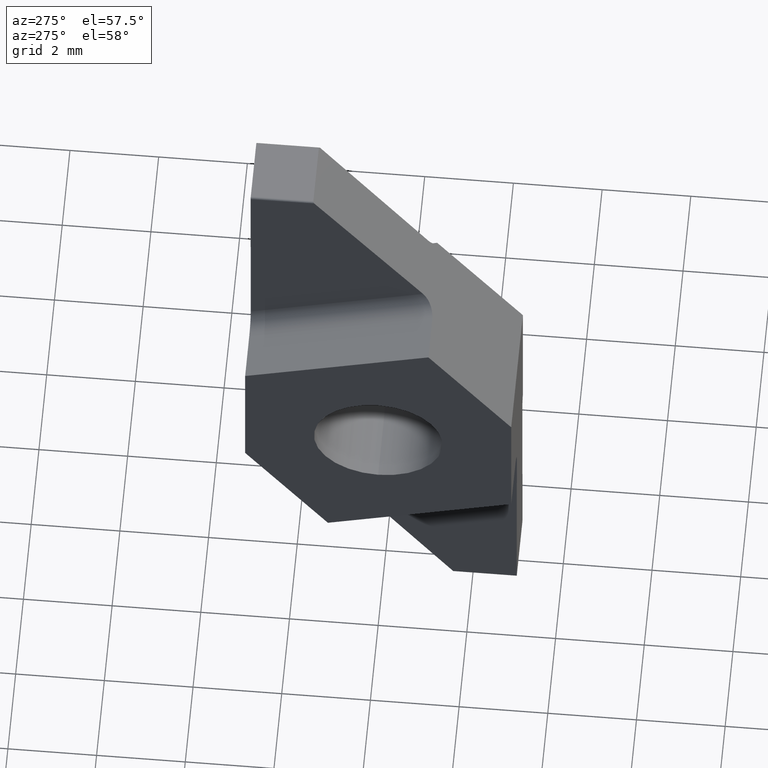
[diagram: clean part render]
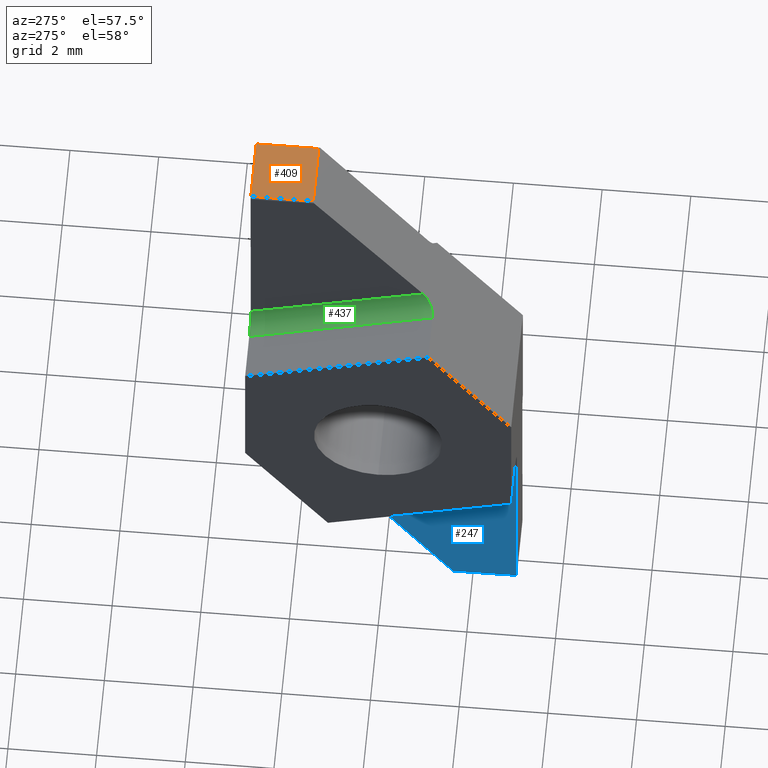
[diagram: same view with three faces highlighted in distinct colors, each labeled with its STEP entity id]
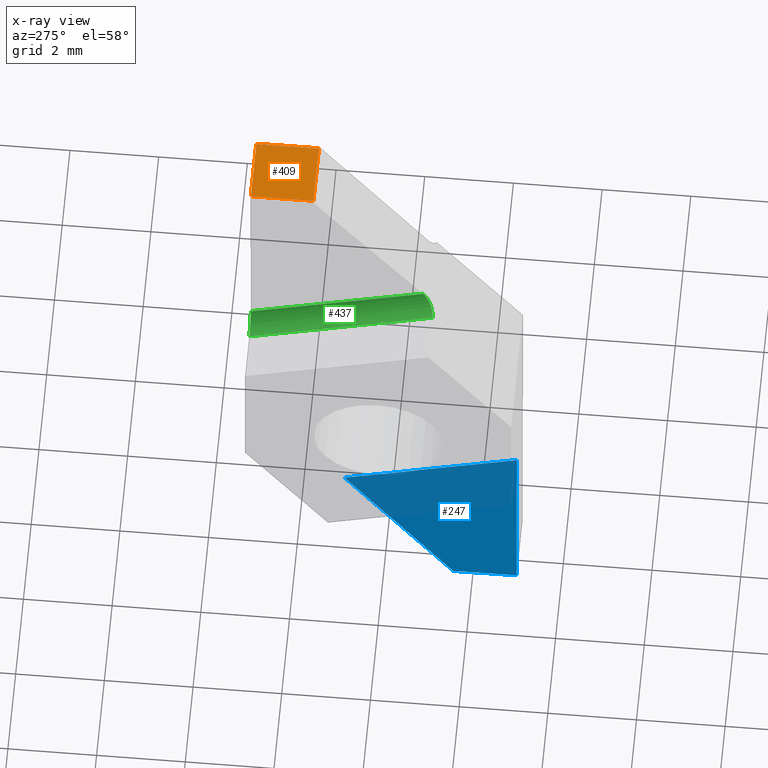
[diagram: x-ray of the same camera — body ghosted, the three highlighted faces saturated]
A machine part, auxiliary view with three faces highlighted in distinct colors.
The next image is the same camera in x-ray (body ghosted, the three faces saturated) — at least one of them is partly hidden behind the body in this view.
Their STEP definitions:

[orange] entity #409 — the highlighted planar face has unit normal (0, 0, 1).
#13 = EDGE_CURVE ( 'NONE', #261, #553, #333, .T. ) ;
#54 = DIRECTION ( 'NONE',  ( 0.000000000000000000, 0.000000000000000000, 1.000000000000000000 ) ) ;
#80 = CARTESIAN_POINT ( 'NONE',  ( 1.460000000000000409, 1.589232770288606211, 7.500000000000000000 ) ) ;
#98 = EDGE_CURVE ( 'NONE', #508, #140, #605, .T. ) ;
#106 = VECTOR ( 'NONE', #568, 1000.000000000000000 ) ;
#117 = PLANE ( 'NONE',  #529 ) ;
#125 = CARTESIAN_POINT ( 'NONE',  ( 1.460000000000000409, 2.999999999999832578, 7.500000000000003553 ) ) ;
#140 = VERTEX_POINT ( 'NONE', #125 ) ;
#141 = VECTOR ( 'NONE', #702, 1000.000000000000000 ) ;
#164 = ORIENTED_EDGE ( 'NONE', *, *, #418, .F. ) ;
#198 = CARTESIAN_POINT ( 'NONE',  ( 1.460000000000000409, 23.53959590644414490, 7.500000000000003553 ) ) ;
#231 = EDGE_LOOP ( 'NONE', ( #506, #164, #353, #348 ) ) ;
#237 = CARTESIAN_POINT ( 'NONE',  ( 2.860000000000000764, 3.000000000000169198, 7.500000000000000000 ) ) ;
#238 = EDGE_CURVE ( 'NONE', #140, #261, #638, .T. ) ;
#261 = VERTEX_POINT ( 'NONE', #80 ) ;
#303 = DIRECTION ( 'NONE',  ( -1.000000000000000000, 0.000000000000000000, 0.000000000000000000 ) ) ;
#321 = LINE ( 'NONE', #742, #106 ) ;
#333 = LINE ( 'NONE', #575, #415 ) ;
#348 = ORIENTED_EDGE ( 'NONE', *, *, #238, .T. ) ;
#353 = ORIENTED_EDGE ( 'NONE', *, *, #98, .T. ) ;
#358 = CARTESIAN_POINT ( 'NONE',  ( 10.00000000000000000, -3.000000000000169198, 7.500000000000000000 ) ) ;
#377 = CARTESIAN_POINT ( 'NONE',  ( 10.00000000000000000, 3.000000000000169198, 7.500000000000000000 ) ) ;
#409 = ADVANCED_FACE ( 'NONE', ( #421 ), #117, .T. ) ;
#415 = VECTOR ( 'NONE', #458, 1000.000000000000000 ) ;
#418 = EDGE_CURVE ( 'NONE', #508, #553, #321, .T. ) ;
#421 = FACE_OUTER_BOUND ( 'NONE', #231, .T. ) ;
#458 = DIRECTION ( 'NONE',  ( 1.000000000000000000, 0.000000000000000000, 0.000000000000000000 ) ) ;
#463 = CARTESIAN_POINT ( 'NONE',  ( 2.860000000000000764, 1.589232770288270036, 7.500000000000000000 ) ) ;
#481 = VECTOR ( 'NONE', #737, 1000.000000000000000 ) ;
#506 = ORIENTED_EDGE ( 'NONE', *, *, #13, .T. ) ;
#508 = VERTEX_POINT ( 'NONE', #237 ) ;
#529 = AXIS2_PLACEMENT_3D ( 'NONE', #358, #54, #303 ) ;
#553 = VERTEX_POINT ( 'NONE', #463 ) ;
#568 = DIRECTION ( 'NONE',  ( 0.000000000000000000, -1.000000000000000000, -0.000000000000000000 ) ) ;
#575 = CARTESIAN_POINT ( 'NONE',  ( 3.000000000000000000, 1.589232770288606211, 7.500000000000000000 ) ) ;
#605 = LINE ( 'NONE', #377, #481 ) ;
#638 = LINE ( 'NONE', #198, #141 ) ;
#702 = DIRECTION ( 'NONE',  ( 0.000000000000000000, -1.000000000000000000, -0.000000000000000000 ) ) ;
#737 = DIRECTION ( 'NONE',  ( -1.000000000000000000, 0.000000000000000000, 0.000000000000000000 ) ) ;
#742 = CARTESIAN_POINT ( 'NONE',  ( 2.860000000000000764, 31.03959590644372213, 7.500000000000000000 ) ) ;

[blue] entity #247 — the highlighted planar face has unit normal (1, -0.0028, -0.0087).
#73 = DIRECTION ( 'NONE',  ( 5.093655730767995543E-19, 0.9510565162951555296, -0.3090169943749410120 ) ) ;
#76 = DIRECTION ( 'NONE',  ( 0.008774687666367915473, 0.5735543546259364023, 0.8191205083172947710 ) ) ;
#77 = EDGE_CURVE ( 'NONE', #391, #773, #430, .T. ) ;
#94 = CARTESIAN_POINT ( 'NONE',  ( 1.411256645075674498, -2.515967305519214658, -7.463056325603257157 ) ) ;
#118 = VECTOR ( 'NONE', #248, 1000.000000000000114 ) ;
#145 = PLANE ( 'NONE',  #461 ) ;
#147 = CARTESIAN_POINT ( 'NONE',  ( 1.451432179471500605, 0.8861363315428182341, -3.964806551268897916 ) ) ;
#152 = LINE ( 'NONE', #219, #550 ) ;
#160 = CARTESIAN_POINT ( 'NONE',  ( 1.410001903846790583, -3.000000000000314859, -7.449563673225082283 ) ) ;
#204 = EDGE_LOOP ( 'NONE', ( #603, #467, #346, #398 ) ) ;
#219 = CARTESIAN_POINT ( 'NONE',  ( 1.410099431060302333, -1.815564143878643177, -7.823234700056299395 ) ) ;
#247 = ADVANCED_FACE ( 'NONE', ( #382 ), #145, .F. ) ;
#248 = DIRECTION ( 'NONE',  ( -0.008726535498373853145, -4.847634468166900475E-17, -0.9999619230641713097 ) ) ;
#282 = CARTESIAN_POINT ( 'NONE',  ( 1.413890500866887612, -1.567762207338846414, -7.469336858320151151 ) ) ;
#346 = ORIENTED_EDGE ( 'NONE', *, *, #585, .F. ) ;
#382 = FACE_OUTER_BOUND ( 'NONE', #204, .T. ) ;
#388 = CARTESIAN_POINT ( 'NONE',  ( 1.451432179471500383, 1.002540241998005177, -4.002628474494319910 ) ) ;
#389 = CARTESIAN_POINT ( 'NONE',  ( 1.453192802157977859, -29.66724040110625538, 6.164334712623246837 ) ) ;
#391 = VERTEX_POINT ( 'NONE', #424 ) ;
#398 = ORIENTED_EDGE ( 'NONE', *, *, #545, .T. ) ;
#424 = CARTESIAN_POINT ( 'NONE',  ( 1.451432179471500605, -2.999999999999830802, -2.702124314904428726 ) ) ;
#430 = LINE ( 'NONE', #679, #118 ) ;
#438 = LINE ( 'NONE', #388, #626 ) ;
#461 = AXIS2_PLACEMENT_3D ( 'NONE', #389, #644, #566 ) ;
#467 = ORIENTED_EDGE ( 'NONE', *, *, #606, .T. ) ;
#477 =( BOUNDED_CURVE ( )  B_SPLINE_CURVE ( 3, ( #282, #94, #761, #641 ),
 .UNSPECIFIED., .F., .F. ) 
 B_SPLINE_CURVE_WITH_KNOTS ( ( 4, 4 ),
 ( 2.735775186870361253, 3.141592653589801110 ),
 .UNSPECIFIED. ) 
 CURVE ( )  GEOMETRIC_REPRESENTATION_ITEM ( )  RATIONAL_B_SPLINE_CURVE ( ( 1.000000000000000000, 0.9863230376731820792, 0.9863230376731820792, 1.000000000000000000 ) ) 
 REPRESENTATION_ITEM ( '' )  );
#545 = EDGE_CURVE ( 'NONE', #636, #773, #477, .T. ) ;
#550 = VECTOR ( 'NONE', #76, 1000.000000000000114 ) ;
#557 = CARTESIAN_POINT ( 'NONE',  ( 1.413890500866887612, -1.567762207338846414, -7.469336858320151151 ) ) ;
#566 = DIRECTION ( 'NONE',  ( 0.008726535498373853145, 0.000000000000000000, 0.9999619230641713097 ) ) ;
#585 = EDGE_CURVE ( 'NONE', #636, #586, #152, .T. ) ;
#586 = VERTEX_POINT ( 'NONE', #147 ) ;
#603 = ORIENTED_EDGE ( 'NONE', *, *, #77, .F. ) ;
#606 = EDGE_CURVE ( 'NONE', #391, #586, #438, .T. ) ;
#626 = VECTOR ( 'NONE', #73, 1000.000000000000114 ) ;
#636 = VERTEX_POINT ( 'NONE', #557 ) ;
#641 = CARTESIAN_POINT ( 'NONE',  ( 1.410001903846790583, -3.000000000000314859, -7.449563673225082283 ) ) ;
#644 = DIRECTION ( 'NONE',  ( 0.9999579034289297619, -0.002835411865495975157, -0.008726500419548532950 ) ) ;
#679 = CARTESIAN_POINT ( 'NONE',  ( 1.483383476474299911, -2.999999999999830802, 0.9591316785270335155 ) ) ;
#761 = CARTESIAN_POINT ( 'NONE',  ( 1.409942472175732320, -3.000000000000333955, -7.456373868186561893 ) ) ;
#773 = VERTEX_POINT ( 'NONE', #160 ) ;

[green] entity #437 — the highlighted cylindrical surface (edge-blend (fillet) strip) has radius 0.4 mm, axis along (0, -0.9511, 0.309).
#11 = CARTESIAN_POINT ( 'NONE',  ( 1.289238112131137370, -1.127075876279473032, 3.620709220707892140 ) ) ;
#19 = EDGE_CURVE ( 'NONE', #51, #448, #642, .T. ) ;
#26 = DIRECTION ( 'NONE',  ( 5.093655730767995543E-19, -0.9510565162951555296, 0.3090169943749410120 ) ) ;
#44 = CARTESIAN_POINT ( 'NONE',  ( 1.451432179471501271, -0.8861363315425921927, 3.964806551268740265 ) ) ;
#51 = VERTEX_POINT ( 'NONE', #676 ) ;
#65 = EDGE_CURVE ( 'NONE', #448, #396, #343, .T. ) ;
#135 = CARTESIAN_POINT ( 'NONE',  ( 1.054768801550696189, 3.000000000000168754, 2.277694797982560360 ) ) ;
#172 = LINE ( 'NONE', #783, #482 ) ;
#188 = DIRECTION ( 'NONE',  ( 0.000000000000000000, -0.3090169943749418446, -0.9510565162951553075 ) ) ;
#191 = EDGE_CURVE ( 'NONE', #291, #51, #367, .T. ) ;
#195 = ORIENTED_EDGE ( 'NONE', *, *, #19, .F. ) ;
#217 = CARTESIAN_POINT ( 'NONE',  ( 1.289238112131089409, 2.999999999999829914, 2.279740980657094962 ) ) ;
#232 = AXIS2_PLACEMENT_3D ( 'NONE', #501, #688, #188 ) ;
#235 = CARTESIAN_POINT ( 'NONE',  ( 1.054768801550694191, -1.128243077449439635, 3.619042284683054778 ) ) ;
#255 = CARTESIAN_POINT ( 'NONE',  ( 1.054768801550694191, -1.128243077449439635, 3.619042284683054778 ) ) ;
#291 = VERTEX_POINT ( 'NONE', #400 ) ;
#328 = ORIENTED_EDGE ( 'NONE', *, *, #591, .F. ) ;
#342 = ORIENTED_EDGE ( 'NONE', *, *, #191, .F. ) ;
#343 =( BOUNDED_CURVE ( )  B_SPLINE_CURVE ( 3, ( #364, #374, #11, #255 ),
 .UNSPECIFIED., .F., .F. ) 
 B_SPLINE_CURVE_WITH_KNOTS ( ( 4, 4 ),
 ( 4.703213266088004829, 6.274885753270529776 ),
 .UNSPECIFIED. ) 
 CURVE ( )  GEOMETRIC_REPRESENTATION_ITEM ( )  RATIONAL_B_SPLINE_CURVE ( ( 1.000000000000000000, 0.8045312959125141550, 0.8045312959125141550, 1.000000000000000000 ) ) 
 REPRESENTATION_ITEM ( '' )  );
#360 = VECTOR ( 'NONE', #26, 1000.000000000000114 ) ;
#364 = CARTESIAN_POINT ( 'NONE',  ( 1.451432179471501271, -0.8861363315425921927, 3.964806551268740265 ) ) ;
#367 =( BOUNDED_CURVE ( )  B_SPLINE_CURVE ( 3, ( #135, #217, #758, #584 ),
 .UNSPECIFIED., .F., .F. ) 
 B_SPLINE_CURVE_WITH_KNOTS ( ( 4, 4 ),
 ( 3.149892207498850460, 4.721564694681115171 ),
 .UNSPECIFIED. ) 
 CURVE ( )  GEOMETRIC_REPRESENTATION_ITEM ( )  RATIONAL_B_SPLINE_CURVE ( ( 1.000000000000000000, 0.8045312959125754393, 0.8045312959125754393, 1.000000000000000000 ) ) 
 REPRESENTATION_ITEM ( '' )  );
#374 = CARTESIAN_POINT ( 'NONE',  ( 1.453583646786360761, -1.026766231340057400, 3.763966240185128154 ) ) ;
#386 = FACE_OUTER_BOUND ( 'NONE', #723, .T. ) ;
#396 = VERTEX_POINT ( 'NONE', #235 ) ;
#400 = CARTESIAN_POINT ( 'NONE',  ( 1.054768801550696189, 3.000000000000168754, 2.277694797982560360 ) ) ;
#437 = ADVANCED_FACE ( 'NONE', ( #386 ), #439, .F. ) ;
#439 = CYLINDRICAL_SURFACE ( 'NONE', #232, 0.4000000000000002442 ) ;
#448 = VERTEX_POINT ( 'NONE', #44 ) ;
#482 = VECTOR ( 'NONE', #592, 1000.000000000000227 ) ;
#501 = CARTESIAN_POINT ( 'NONE',  ( 1.051449018099928523, -3.834513433123825088, 4.918933230862002404 ) ) ;
#584 = CARTESIAN_POINT ( 'NONE',  ( 1.451432179471500383, 3.000000000000168754, 2.702124314904319924 ) ) ;
#591 = EDGE_CURVE ( 'NONE', #396, #291, #172, .T. ) ;
#592 = DIRECTION ( 'NONE',  ( -4.336808689942016773E-19, 0.9510565162951556406, -0.3090169943749410120 ) ) ;
#642 = LINE ( 'NONE', #752, #360 ) ;
#662 = ORIENTED_EDGE ( 'NONE', *, *, #65, .F. ) ;
#676 = CARTESIAN_POINT ( 'NONE',  ( 1.451432179471500383, 3.000000000000168754, 2.702124314904319924 ) ) ;
#688 = DIRECTION ( 'NONE',  ( 2.704990084213471555E-20, -0.9510565162951556406, 0.3090169943749410675 ) ) ;
#723 = EDGE_LOOP ( 'NONE', ( #662, #195, #342, #328 ) ) ;
#752 = CARTESIAN_POINT ( 'NONE',  ( 1.451432179471500383, -1.002540241998005177, 4.002628474494319910 ) ) ;
#758 = CARTESIAN_POINT ( 'NONE',  ( 1.453583646786299921, 2.999999999999829914, 2.455590579497216819 ) ) ;
#783 = CARTESIAN_POINT ( 'NONE',  ( 1.054768801550694857, 2.998973231275688267, 2.278028415364619974 ) ) ;